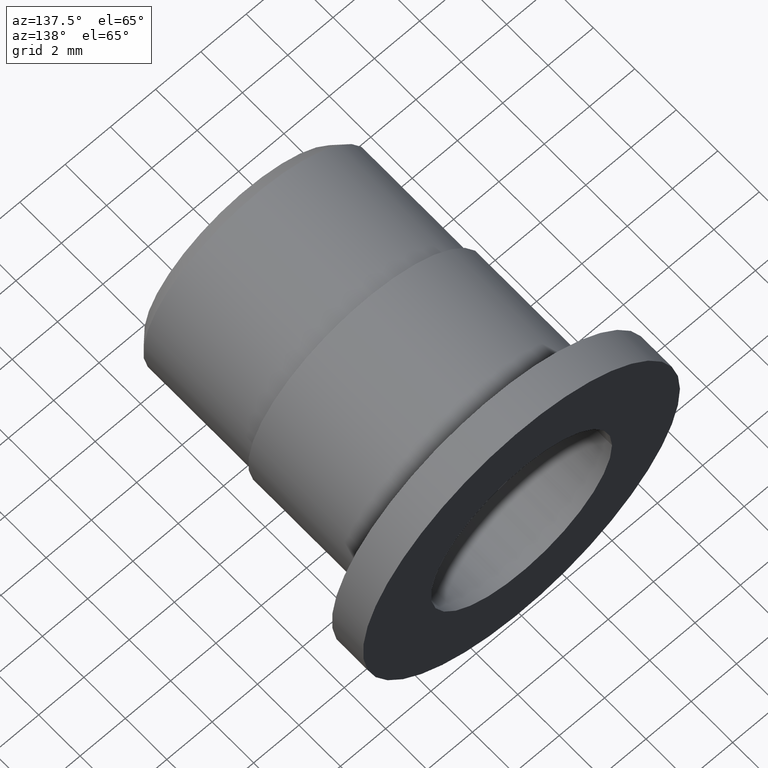
[diagram: clean part render]
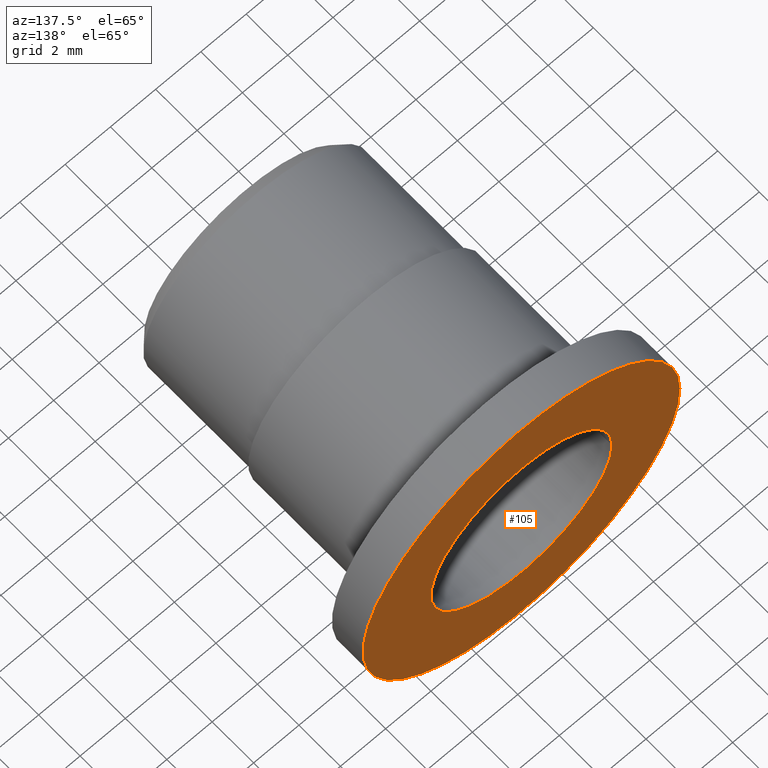
[diagram: same view with one face highlighted and labeled with its STEP entity id]
A machine part, auxiliary view. The second image highlights one B-rep face of the part: STEP entity #105.
In plain terms, the highlighted planar face has unit normal (0, 1, 0).
Its self-contained STEP definition (entity closure, byte-faithful):
#20=FACE_BOUND('',#39,.T.);
#29=FACE_OUTER_BOUND('',#38,.T.);
#38=EDGE_LOOP('',(#83));
#39=EDGE_LOOP('',(#84));
#56=CIRCLE('',#117,7.);
#57=CIRCLE('',#118,4.);
#65=VERTEX_POINT('',#174);
#66=VERTEX_POINT('',#176);
#74=EDGE_CURVE('',#65,#65,#56,.T.);
#75=EDGE_CURVE('',#66,#66,#57,.T.);
#83=ORIENTED_EDGE('',*,*,#74,.T.);
#84=ORIENTED_EDGE('',*,*,#75,.F.);
#101=PLANE('',#116);
#105=ADVANCED_FACE('',(#29,#20),#101,.T.);
#116=AXIS2_PLACEMENT_3D('',#173,#136,#137);
#117=AXIS2_PLACEMENT_3D('',#175,#138,#139);
#118=AXIS2_PLACEMENT_3D('',#177,#140,#141);
#136=DIRECTION('center_axis',(0.,1.,0.));
#137=DIRECTION('ref_axis',(0.,0.,1.));
#138=DIRECTION('center_axis',(0.,1.,0.));
#139=DIRECTION('ref_axis',(-1.,0.,0.));
#140=DIRECTION('center_axis',(0.,1.,0.));
#141=DIRECTION('ref_axis',(-1.,0.,0.));
#173=CARTESIAN_POINT('Origin',(-5.5,14.,0.));
#174=CARTESIAN_POINT('',(-7.,14.,0.));
#175=CARTESIAN_POINT('Origin',(0.,14.,0.));
#176=CARTESIAN_POINT('',(-4.,14.,0.));
#177=CARTESIAN_POINT('Origin',(0.,14.,0.));